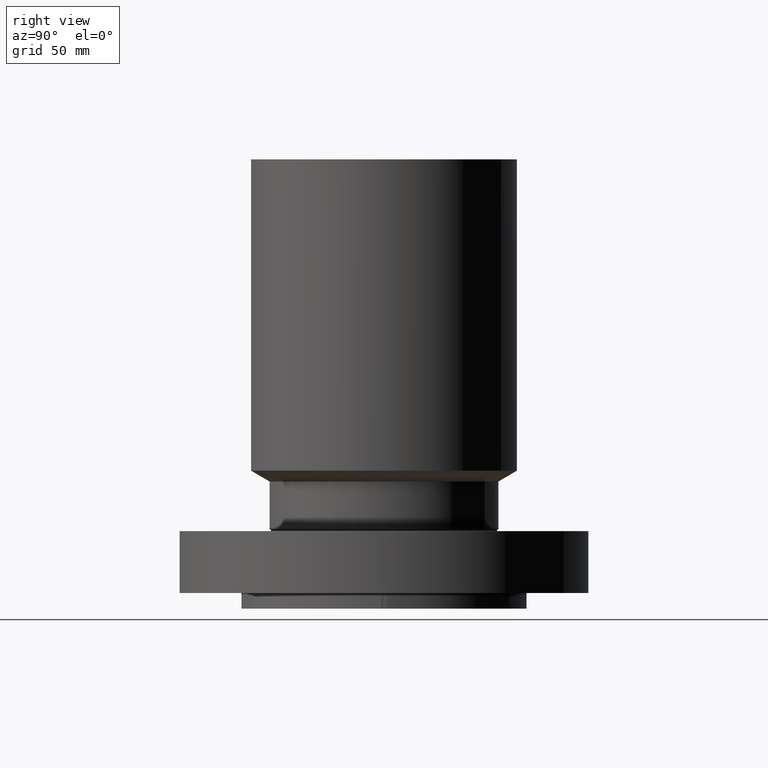
[diagram: clean part render]
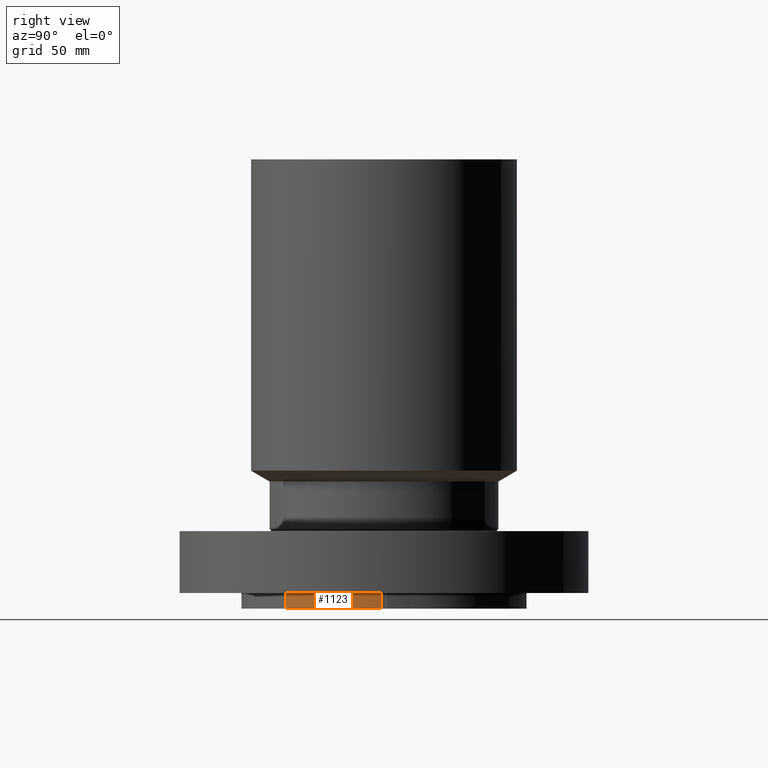
[diagram: same view with one face highlighted and labeled with its STEP entity id]
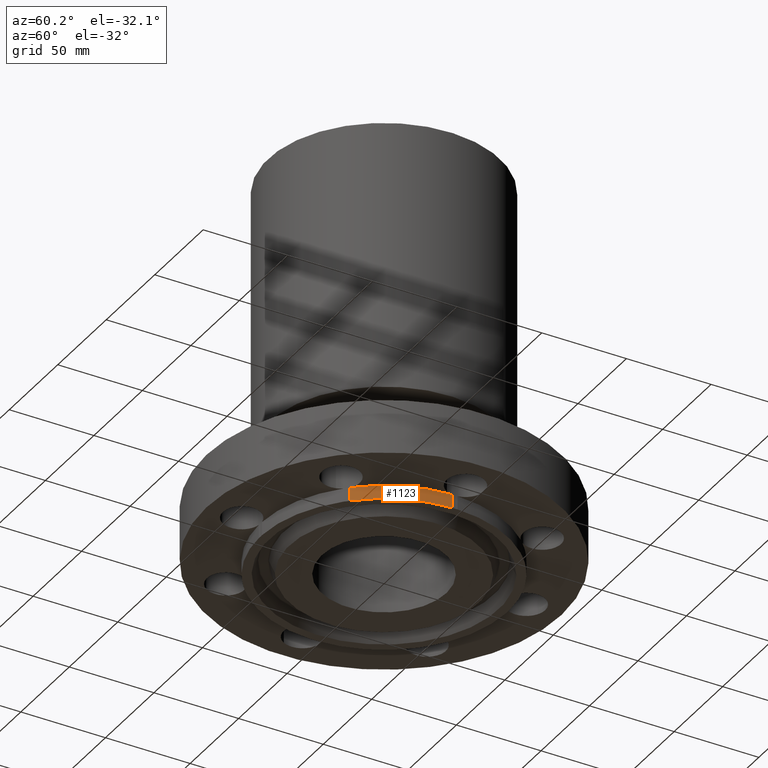
[diagram: same view with one face highlighted and labeled with its STEP entity id]
A machine part, right view. The second image highlights one B-rep face of the part: STEP entity #1123.
A second angle (auxiliary view) of the same face is appended — the face is thin or edge-on in the first view.
In plain terms, the highlighted cylindrical surface (partial cylindrical patch) has radius 73.025 mm, axis along (0, 0, -1).
Its self-contained STEP definition (entity closure, byte-faithful):
#165=AXIS2_PLACEMENT_3D('Circle Axis2P3D',#163,#164,$) ;
#554=AXIS2_PLACEMENT_3D('Circle Axis2P3D',#552,#553,$) ;
#1110=AXIS2_PLACEMENT_3D('Cylinder Axis2P3D',#1107,#1108,#1109) ;
#160=CARTESIAN_POINT('Vertex',(2.07605138692,-1.98887798493,5.5620425151E-016)) ;
#163=CARTESIAN_POINT('Axis2P3D Location',(0.,0.,0.)) ;
#167=CARTESIAN_POINT('Vertex',(2.87433912388,-0.0616409036851,5.59482469102E-016)) ;
#369=CARTESIAN_POINT('Line Origine',(2.87433912388,-0.0616409036851,0.468500000002)) ;
#373=CARTESIAN_POINT('Vertex',(2.87433912388,-0.0616409036851,-0.313000000001)) ;
#552=CARTESIAN_POINT('Axis2P3D Location',(0.,0.,-0.313000000001)) ;
#556=CARTESIAN_POINT('Vertex',(2.07605138692,-1.98887798493,-0.313000000001)) ;
#1107=CARTESIAN_POINT('Axis2P3D Location',(0.,0.,4.21850000002)) ;
#1112=CARTESIAN_POINT('Line Origine',(2.07605138692,-1.98887798493,-0.156500000001)) ;
#164=DIRECTION('Axis2P3D Direction',(0.,0.,-0.0393700787402)) ;
#370=DIRECTION('Vector Direction',(0.,0.,0.0393700787402)) ;
#553=DIRECTION('Axis2P3D Direction',(0.,0.,-0.0393700787402)) ;
#1108=DIRECTION('Axis2P3D Direction',(0.,0.,-0.0393700787402)) ;
#1109=DIRECTION('Axis2P3D XDirection',(0.0284293240248,0.0272355766508,0.)) ;
#1113=DIRECTION('Vector Direction',(0.,0.,-0.0393700787402)) ;
#371=VECTOR('Line Direction',#370,0.0393700787402) ;
#1114=VECTOR('Line Direction',#1113,0.0393700787402) ;
#1118=ORIENTED_EDGE('',*,*,#558,.F.) ;
#1119=ORIENTED_EDGE('',*,*,#375,.F.) ;
#1120=ORIENTED_EDGE('',*,*,#169,.T.) ;
#1121=ORIENTED_EDGE('',*,*,#1116,.T.) ;
#1123=ADVANCED_FACE('PartBody',(#1122),#1111,.T.) ;
#166=CIRCLE('generated circle',#165,2.87500000001) ;
#555=CIRCLE('generated circle',#554,2.87500000001) ;
#1111=CYLINDRICAL_SURFACE('generated cylinder',#1110,2.87500000001) ;
#169=EDGE_CURVE('',#168,#161,#166,.T.) ;
#375=EDGE_CURVE('',#168,#374,#372,.F.) ;
#558=EDGE_CURVE('',#374,#557,#555,.T.) ;
#1116=EDGE_CURVE('',#161,#557,#1115,.T.) ;
#1117=EDGE_LOOP('',(#1118,#1119,#1120,#1121)) ;
#1122=FACE_OUTER_BOUND('',#1117,.T.) ;
#372=LINE('Line',#369,#371) ;
#1115=LINE('Line',#1112,#1114) ;
#161=VERTEX_POINT('',#160) ;
#168=VERTEX_POINT('',#167) ;
#374=VERTEX_POINT('',#373) ;
#557=VERTEX_POINT('',#556) ;